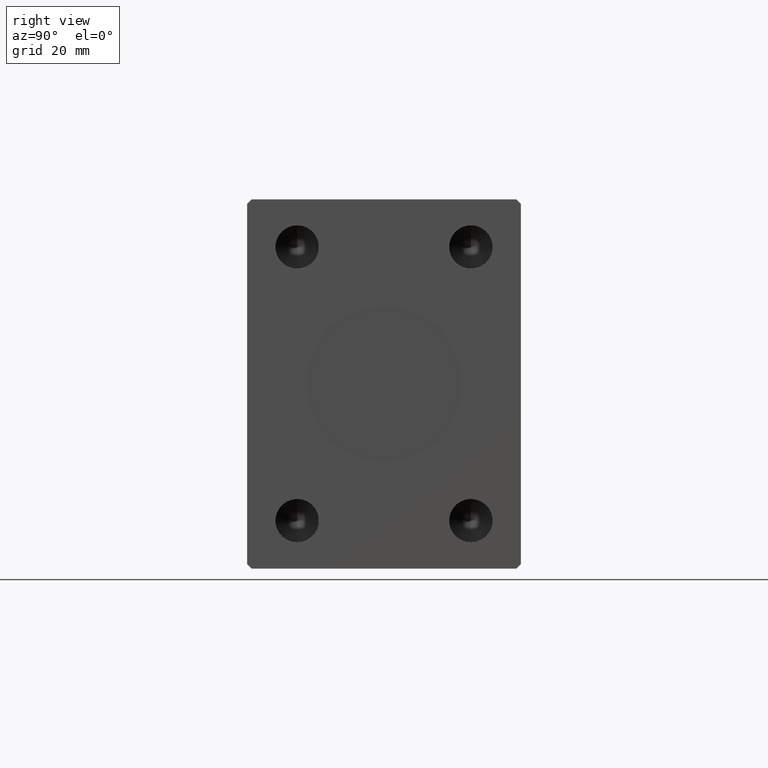
[diagram: clean part render]
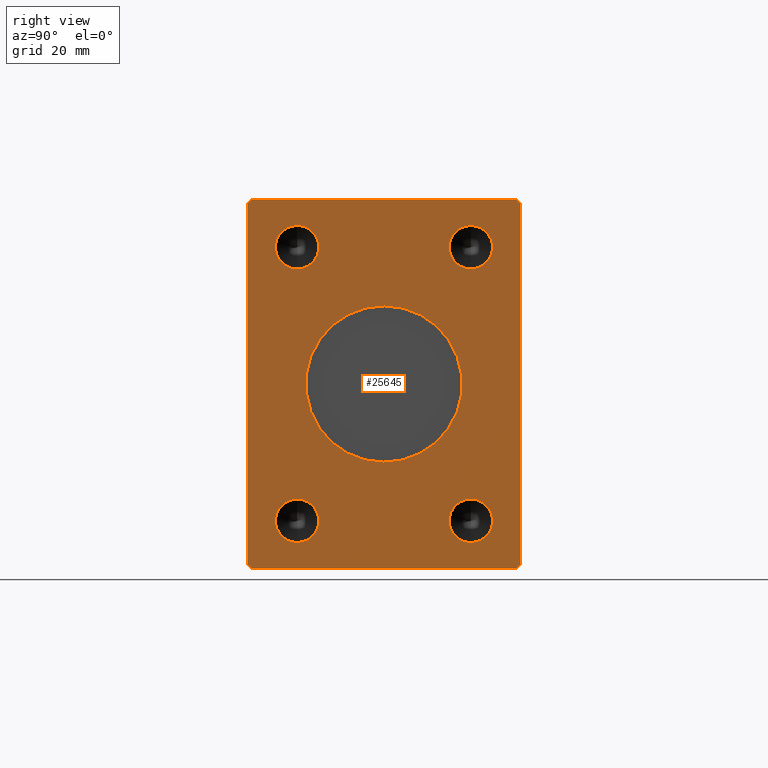
[diagram: same view with one face highlighted and labeled with its STEP entity id]
A machine part, right view. The second image highlights one B-rep face of the part: STEP entity #25645.
In plain terms, the highlighted planar face has unit normal (1, 0, 0).
Its self-contained STEP definition (entity closure, byte-faithful):
#497 = CARTESIAN_POINT ( 'NONE',  ( 96.00000000000000000, 19.99999999999999645, 26.50000000000000355 ) ) ;
#580 = CARTESIAN_POINT ( 'NONE',  ( 96.00000000000000000, 31.50000000000001421, -41.50000000000000711 ) ) ;
#1135 = LINE ( 'NONE', #22067, #8133 ) ;
#1153 = CARTESIAN_POINT ( 'NONE',  ( 96.00000000000000000, -30.50000000000000711, -42.50000000000000711 ) ) ;
#1332 = CARTESIAN_POINT ( 'NONE',  ( 96.00000000000000000, 19.99999999999999645, 31.50000000000000000 ) ) ;
#1756 = CARTESIAN_POINT ( 'NONE',  ( 96.00000000000000000, -20.00000000000000355, 36.50000000000000000 ) ) ;
#1766 = DIRECTION ( 'NONE',  ( 1.000000000000000000, -0.000000000000000000, -0.000000000000000000 ) ) ;
#2826 = EDGE_LOOP ( 'NONE', ( #40670, #41872 ) ) ;
#3378 = VECTOR ( 'NONE', #43785, 1000.000000000000000 ) ;
#3979 = CIRCLE ( 'NONE', #37791, 18.00000000000000000 ) ;
#4174 = EDGE_LOOP ( 'NONE', ( #7731, #25874 ) ) ;
#5056 = DIRECTION ( 'NONE',  ( 0.000000000000000000, 0.000000000000000000, -1.000000000000000000 ) ) ;
#5429 = DIRECTION ( 'NONE',  ( 0.000000000000000000, 0.000000000000000000, -1.000000000000000000 ) ) ;
#5514 = VECTOR ( 'NONE', #5056, 1000.000000000000000 ) ;
#6312 = CARTESIAN_POINT ( 'NONE',  ( 96.00000000000000000, -20.00000000000000355, -36.50000000000000000 ) ) ;
#6630 = FACE_BOUND ( 'NONE', #2826, .T. ) ;
#6760 = EDGE_CURVE ( 'NONE', #13024, #11837, #1135, .T. ) ;
#6902 = CIRCLE ( 'NONE', #13361, 4.999999999999997335 ) ;
#7486 = DIRECTION ( 'NONE',  ( 0.000000000000000000, 0.000000000000000000, -1.000000000000000000 ) ) ;
#7731 = ORIENTED_EDGE ( 'NONE', *, *, #18450, .F. ) ;
#7813 = VECTOR ( 'NONE', #29051, 999.9999999999998863 ) ;
#8133 = VECTOR ( 'NONE', #43002, 1000.000000000000114 ) ;
#8711 = AXIS2_PLACEMENT_3D ( 'NONE', #29822, #26444, #13382 ) ;
#8737 = CARTESIAN_POINT ( 'NONE',  ( 96.00000000000000000, 19.99999999999999645, 36.50000000000000000 ) ) ;
#8758 = DIRECTION ( 'NONE',  ( 0.000000000000000000, 0.000000000000000000, -1.000000000000000000 ) ) ;
#8811 = DIRECTION ( 'NONE',  ( 1.000000000000000000, 0.000000000000000000, 0.000000000000000000 ) ) ;
#9312 = CARTESIAN_POINT ( 'NONE',  ( 96.00000000000000000, 30.50000000000001421, 42.49999999999999289 ) ) ;
#9951 = AXIS2_PLACEMENT_3D ( 'NONE', #22312, #8811, #5429 ) ;
#10026 = LINE ( 'NONE', #40841, #37278 ) ;
#10043 = CARTESIAN_POINT ( 'NONE',  ( 96.00000000000000000, -30.50000000000000711, -42.50000000000000711 ) ) ;
#10051 = CARTESIAN_POINT ( 'NONE',  ( 96.00000000000000000, 30.50000000000001776, -42.50000000000000711 ) ) ;
#10265 = DIRECTION ( 'NONE',  ( 0.000000000000000000, 0.000000000000000000, -1.000000000000000000 ) ) ;
#10622 = ORIENTED_EDGE ( 'NONE', *, *, #17343, .F. ) ;
#10882 = VERTEX_POINT ( 'NONE', #21933 ) ;
#11028 = DIRECTION ( 'NONE',  ( 1.000000000000000000, -0.000000000000000000, -0.000000000000000000 ) ) ;
#11047 = CARTESIAN_POINT ( 'NONE',  ( 96.00000000000000000, -20.00000000000000355, -31.50000000000000000 ) ) ;
#11171 = CARTESIAN_POINT ( 'NONE',  ( 96.00000000000000000, 19.99999999999999645, -26.50000000000000355 ) ) ;
#11501 = VERTEX_POINT ( 'NONE', #6312 ) ;
#11837 = VERTEX_POINT ( 'NONE', #9312 ) ;
#12144 = ORIENTED_EDGE ( 'NONE', *, *, #6760, .T. ) ;
#12172 = EDGE_CURVE ( 'NONE', #36564, #41940, #34878, .T. ) ;
#12326 = VERTEX_POINT ( 'NONE', #1756 ) ;
#12727 = EDGE_CURVE ( 'NONE', #10882, #17202, #34853, .T. ) ;
#12748 = VERTEX_POINT ( 'NONE', #32567 ) ;
#12798 = CIRCLE ( 'NONE', #9951, 18.00000000000000000 ) ;
#12835 = CIRCLE ( 'NONE', #40140, 4.999999999999997335 ) ;
#12966 = CARTESIAN_POINT ( 'NONE',  ( 96.00000000000000000, 19.99999999999999645, -31.50000000000000000 ) ) ;
#13024 = VERTEX_POINT ( 'NONE', #19389 ) ;
#13304 = EDGE_CURVE ( 'NONE', #35480, #26315, #3979, .T. ) ;
#13361 = AXIS2_PLACEMENT_3D ( 'NONE', #34897, #11028, #42946 ) ;
#13382 = DIRECTION ( 'NONE',  ( 0.000000000000000000, 0.000000000000000000, -1.000000000000000000 ) ) ;
#13720 = CARTESIAN_POINT ( 'NONE',  ( 96.00000000000000000, 2.204364238465235428E-15, 18.00000000000000000 ) ) ;
#13861 = DIRECTION ( 'NONE',  ( 0.000000000000000000, 0.7071067811865462405, 0.7071067811865489050 ) ) ;
#13887 = ORIENTED_EDGE ( 'NONE', *, *, #28709, .F. ) ;
#14611 = EDGE_CURVE ( 'NONE', #17202, #12748, #19928, .T. ) ;
#14748 = AXIS2_PLACEMENT_3D ( 'NONE', #31294, #20721, #16897 ) ;
#15510 = DIRECTION ( 'NONE',  ( 0.000000000000000000, 0.000000000000000000, -1.000000000000000000 ) ) ;
#15544 = AXIS2_PLACEMENT_3D ( 'NONE', #12966, #34535, #7486 ) ;
#15960 = DIRECTION ( 'NONE',  ( 1.000000000000000000, -0.000000000000000000, -0.000000000000000000 ) ) ;
#16093 = FACE_OUTER_BOUND ( 'NONE', #34163, .T. ) ;
#16414 = VECTOR ( 'NONE', #34832, 1000.000000000000000 ) ;
#16897 = DIRECTION ( 'NONE',  ( 0.000000000000000000, 0.000000000000000000, -1.000000000000000000 ) ) ;
#17202 = VERTEX_POINT ( 'NONE', #1153 ) ;
#17343 = EDGE_CURVE ( 'NONE', #26315, #35480, #12798, .T. ) ;
#17519 = CARTESIAN_POINT ( 'NONE',  ( 96.00000000000000000, -31.50000000000000000, -41.50000000000000711 ) ) ;
#18266 = VERTEX_POINT ( 'NONE', #20287 ) ;
#18450 = EDGE_CURVE ( 'NONE', #11501, #43702, #12835, .T. ) ;
#18491 = EDGE_CURVE ( 'NONE', #21123, #23427, #38008, .T. ) ;
#18517 = VECTOR ( 'NONE', #13861, 999.9999999999998863 ) ;
#19389 = CARTESIAN_POINT ( 'NONE',  ( 96.00000000000000000, 31.50000000000001421, 41.49999999999999289 ) ) ;
#19407 = CARTESIAN_POINT ( 'NONE',  ( 96.00000000000000000, -30.50000000000000355, 42.49999999999999289 ) ) ;
#19769 = CARTESIAN_POINT ( 'NONE',  ( 96.00000000000000000, -20.00000000000000355, -31.50000000000000000 ) ) ;
#19928 = LINE ( 'NONE', #10043, #3378 ) ;
#20121 = VERTEX_POINT ( 'NONE', #19407 ) ;
#20287 = CARTESIAN_POINT ( 'NONE',  ( 96.00000000000000000, 31.50000000000001421, -41.50000000000000711 ) ) ;
#20721 = DIRECTION ( 'NONE',  ( 1.000000000000000000, -0.000000000000000000, -0.000000000000000000 ) ) ;
#21123 = VERTEX_POINT ( 'NONE', #27446 ) ;
#21267 = CARTESIAN_POINT ( 'NONE',  ( 96.00000000000000000, -20.00000000000000355, 31.50000000000000000 ) ) ;
#21384 = DIRECTION ( 'NONE',  ( 1.000000000000000000, -0.000000000000000000, -0.000000000000000000 ) ) ;
#21833 = ORIENTED_EDGE ( 'NONE', *, *, #38620, .T. ) ;
#21933 = CARTESIAN_POINT ( 'NONE',  ( 96.00000000000000000, -31.50000000000000000, -41.50000000000000711 ) ) ;
#22067 = CARTESIAN_POINT ( 'NONE',  ( 96.00000000000000000, 31.50000000000001421, 41.49999999999999289 ) ) ;
#22184 = ORIENTED_EDGE ( 'NONE', *, *, #42066, .T. ) ;
#22312 = CARTESIAN_POINT ( 'NONE',  ( 96.00000000000000000, 0.000000000000000000, 0.000000000000000000 ) ) ;
#22341 = ORIENTED_EDGE ( 'NONE', *, *, #29747, .T. ) ;
#22588 = EDGE_LOOP ( 'NONE', ( #22767, #42382 ) ) ;
#22767 = ORIENTED_EDGE ( 'NONE', *, *, #39712, .F. ) ;
#23141 = DIRECTION ( 'NONE',  ( 1.000000000000000000, -0.000000000000000000, -0.000000000000000000 ) ) ;
#23244 = CARTESIAN_POINT ( 'NONE',  ( 96.00000000000000000, -20.00000000000000355, -26.50000000000000355 ) ) ;
#23427 = VERTEX_POINT ( 'NONE', #11171 ) ;
#23742 = FACE_BOUND ( 'NONE', #42271, .T. ) ;
#24683 = LINE ( 'NONE', #580, #16414 ) ;
#24707 = ORIENTED_EDGE ( 'NONE', *, *, #13304, .F. ) ;
#25540 = CARTESIAN_POINT ( 'NONE',  ( 96.00000000000000000, -31.50000000000000000, 41.49999999999999289 ) ) ;
#25645 = ADVANCED_FACE ( 'NONE', ( #23742, #37702, #37477, #33209, #6630, #16093 ), #44216, .T. ) ;
#25865 = AXIS2_PLACEMENT_3D ( 'NONE', #21267, #31407, #10265 ) ;
#25868 = CARTESIAN_POINT ( 'NONE',  ( 96.00000000000000000, 0.000000000000000000, 0.000000000000000000 ) ) ;
#25874 = ORIENTED_EDGE ( 'NONE', *, *, #39678, .F. ) ;
#26315 = VERTEX_POINT ( 'NONE', #39130 ) ;
#26443 = CIRCLE ( 'NONE', #42248, 4.999999999999997335 ) ;
#26444 = DIRECTION ( 'NONE',  ( 1.000000000000000000, 0.000000000000000000, 0.000000000000000000 ) ) ;
#26750 = DIRECTION ( 'NONE',  ( 1.000000000000000000, 0.000000000000000000, 0.000000000000000000 ) ) ;
#27091 = EDGE_CURVE ( 'NONE', #35527, #12326, #6902, .T. ) ;
#27446 = CARTESIAN_POINT ( 'NONE',  ( 96.00000000000000000, 19.99999999999999645, -36.50000000000000000 ) ) ;
#28705 = LINE ( 'NONE', #25540, #5514 ) ;
#28709 = EDGE_CURVE ( 'NONE', #23427, #21123, #30658, .T. ) ;
#29051 = DIRECTION ( 'NONE',  ( 0.000000000000000000, -0.7071067811865462405, -0.7071067811865489050 ) ) ;
#29252 = ORIENTED_EDGE ( 'NONE', *, *, #33432, .T. ) ;
#29432 = CIRCLE ( 'NONE', #25865, 4.999999999999997335 ) ;
#29494 = LINE ( 'NONE', #43218, #7813 ) ;
#29747 = EDGE_CURVE ( 'NONE', #39773, #10882, #28705, .T. ) ;
#29822 = CARTESIAN_POINT ( 'NONE',  ( 96.00000000000000000, 0.000000000000000000, 0.000000000000000000 ) ) ;
#29875 = ORIENTED_EDGE ( 'NONE', *, *, #18491, .F. ) ;
#30658 = CIRCLE ( 'NONE', #15544, 4.999999999999997335 ) ;
#30721 = DIRECTION ( 'NONE',  ( 0.000000000000000000, -1.000000000000000000, 0.000000000000000000 ) ) ;
#30776 = ORIENTED_EDGE ( 'NONE', *, *, #12727, .T. ) ;
#30975 = LINE ( 'NONE', #10051, #18517 ) ;
#31239 = DIRECTION ( 'NONE',  ( 0.000000000000000000, 0.7071067811865451302, -0.7071067811865500152 ) ) ;
#31294 = CARTESIAN_POINT ( 'NONE',  ( 96.00000000000000000, 19.99999999999999645, 31.50000000000000000 ) ) ;
#31407 = DIRECTION ( 'NONE',  ( 1.000000000000000000, -0.000000000000000000, -0.000000000000000000 ) ) ;
#32204 = CIRCLE ( 'NONE', #37966, 4.999999999999997335 ) ;
#32539 = EDGE_LOOP ( 'NONE', ( #29875, #13887 ) ) ;
#32567 = CARTESIAN_POINT ( 'NONE',  ( 96.00000000000000000, 30.50000000000001776, -42.50000000000000711 ) ) ;
#32707 = VECTOR ( 'NONE', #31239, 1000.000000000000114 ) ;
#32988 = EDGE_CURVE ( 'NONE', #18266, #13024, #24683, .T. ) ;
#33075 = CARTESIAN_POINT ( 'NONE',  ( 96.00000000000000000, 19.99999999999999645, -31.50000000000000000 ) ) ;
#33209 = FACE_BOUND ( 'NONE', #32539, .T. ) ;
#33432 = EDGE_CURVE ( 'NONE', #11837, #20121, #10026, .T. ) ;
#34163 = EDGE_LOOP ( 'NONE', ( #12144, #29252, #22184, #22341, #30776, #43754, #21833, #43041 ) ) ;
#34222 = CARTESIAN_POINT ( 'NONE',  ( 96.00000000000000000, -20.00000000000000355, 26.50000000000000355 ) ) ;
#34535 = DIRECTION ( 'NONE',  ( 1.000000000000000000, -0.000000000000000000, -0.000000000000000000 ) ) ;
#34832 = DIRECTION ( 'NONE',  ( 0.000000000000000000, 0.000000000000000000, 1.000000000000000000 ) ) ;
#34853 = LINE ( 'NONE', #17519, #32707 ) ;
#34878 = CIRCLE ( 'NONE', #14748, 4.999999999999997335 ) ;
#34897 = CARTESIAN_POINT ( 'NONE',  ( 96.00000000000000000, -20.00000000000000355, 31.50000000000000000 ) ) ;
#35080 = CARTESIAN_POINT ( 'NONE',  ( 96.00000000000000000, -31.50000000000000000, 41.49999999999999289 ) ) ;
#35480 = VERTEX_POINT ( 'NONE', #13720 ) ;
#35527 = VERTEX_POINT ( 'NONE', #34222 ) ;
#36564 = VERTEX_POINT ( 'NONE', #8737 ) ;
#37278 = VECTOR ( 'NONE', #30721, 1000.000000000000000 ) ;
#37477 = FACE_BOUND ( 'NONE', #4174, .T. ) ;
#37702 = FACE_BOUND ( 'NONE', #22588, .T. ) ;
#37791 = AXIS2_PLACEMENT_3D ( 'NONE', #25868, #26750, #8758 ) ;
#37966 = AXIS2_PLACEMENT_3D ( 'NONE', #11047, #21384, #38502 ) ;
#38008 = CIRCLE ( 'NONE', #43731, 4.999999999999997335 ) ;
#38502 = DIRECTION ( 'NONE',  ( 0.000000000000000000, 0.000000000000000000, -1.000000000000000000 ) ) ;
#38620 = EDGE_CURVE ( 'NONE', #12748, #18266, #30975, .T. ) ;
#39130 = CARTESIAN_POINT ( 'NONE',  ( 96.00000000000000000, 0.000000000000000000, -18.00000000000000000 ) ) ;
#39678 = EDGE_CURVE ( 'NONE', #43702, #11501, #32204, .T. ) ;
#39712 = EDGE_CURVE ( 'NONE', #41940, #36564, #26443, .T. ) ;
#39773 = VERTEX_POINT ( 'NONE', #35080 ) ;
#40140 = AXIS2_PLACEMENT_3D ( 'NONE', #19769, #23141, #43192 ) ;
#40670 = ORIENTED_EDGE ( 'NONE', *, *, #27091, .F. ) ;
#40841 = CARTESIAN_POINT ( 'NONE',  ( 96.00000000000000000, 30.50000000000001421, 42.49999999999999289 ) ) ;
#41872 = ORIENTED_EDGE ( 'NONE', *, *, #44472, .F. ) ;
#41940 = VERTEX_POINT ( 'NONE', #497 ) ;
#42066 = EDGE_CURVE ( 'NONE', #20121, #39773, #29494, .T. ) ;
#42248 = AXIS2_PLACEMENT_3D ( 'NONE', #1332, #1766, #15510 ) ;
#42271 = EDGE_LOOP ( 'NONE', ( #10622, #24707 ) ) ;
#42382 = ORIENTED_EDGE ( 'NONE', *, *, #12172, .F. ) ;
#42946 = DIRECTION ( 'NONE',  ( 0.000000000000000000, 0.000000000000000000, -1.000000000000000000 ) ) ;
#43002 = DIRECTION ( 'NONE',  ( 0.000000000000000000, -0.7071067811865474617, 0.7071067811865474617 ) ) ;
#43041 = ORIENTED_EDGE ( 'NONE', *, *, #32988, .T. ) ;
#43192 = DIRECTION ( 'NONE',  ( 0.000000000000000000, 0.000000000000000000, -1.000000000000000000 ) ) ;
#43218 = CARTESIAN_POINT ( 'NONE',  ( 96.00000000000000000, -30.50000000000000355, 42.49999999999999289 ) ) ;
#43405 = DIRECTION ( 'NONE',  ( 0.000000000000000000, 0.000000000000000000, -1.000000000000000000 ) ) ;
#43702 = VERTEX_POINT ( 'NONE', #23244 ) ;
#43731 = AXIS2_PLACEMENT_3D ( 'NONE', #33075, #15960, #43405 ) ;
#43754 = ORIENTED_EDGE ( 'NONE', *, *, #14611, .T. ) ;
#43785 = DIRECTION ( 'NONE',  ( 0.000000000000000000, 1.000000000000000000, 0.000000000000000000 ) ) ;
#44216 = PLANE ( 'NONE',  #8711 ) ;
#44472 = EDGE_CURVE ( 'NONE', #12326, #35527, #29432, .T. ) ;